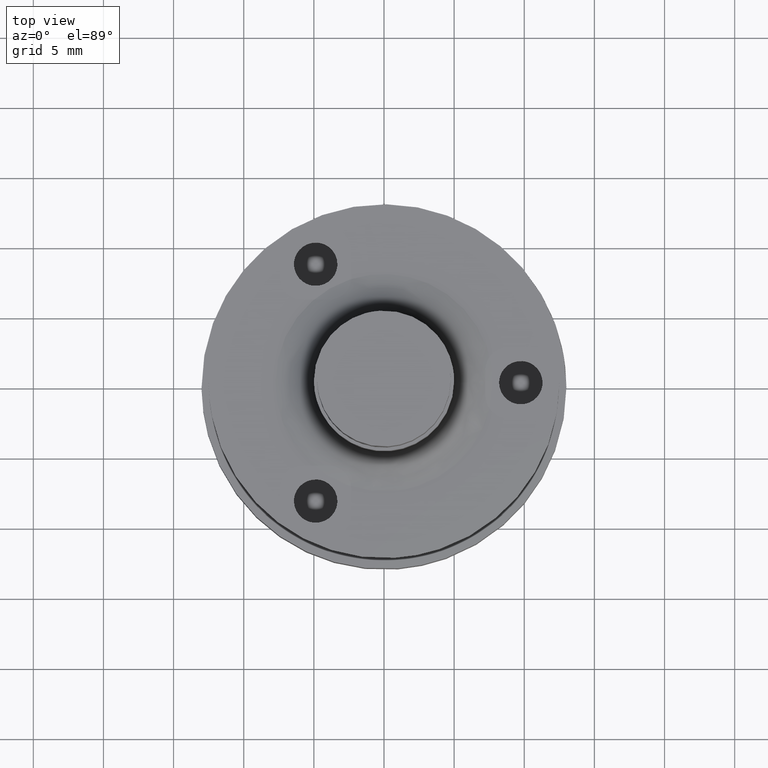
[diagram: clean part render]
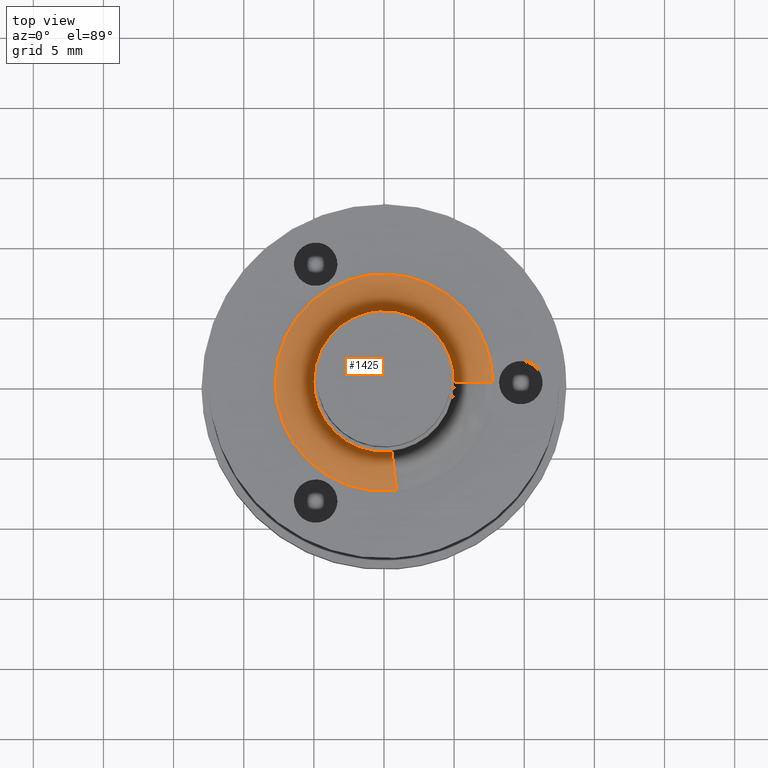
[diagram: same view with one face highlighted and labeled with its STEP entity id]
A machine part, top view. The second image highlights one B-rep face of the part: STEP entity #1425.
In plain terms, the highlighted face is a freeform B-spline surface patch.
Its self-contained STEP definition (entity closure, byte-faithful):
#1003=CARTESIAN_POINT('',(4.680719004476762,1.758086915121115,-9.330715000039447));
#1004=VERTEX_POINT('',#1003);
#1005=CARTESIAN_POINT('',(5.0,2.270239E-016,-9.330715000060895));
#1006=VERTEX_POINT('',#1005);
#1007=CARTESIAN_POINT('',(4.680719004476763,1.758086915121115,-9.330715000039447));
#1008=CARTESIAN_POINT('',(5.0,0.908035298983622,-9.330715000049835));
#1009=CARTESIAN_POINT('',(5.0,2.270239E-016,-9.330715000060895));
#1017=(BOUNDED_CURVE()B_SPLINE_CURVE(2,(#1007,#1008,#1009),.UNSPECIFIED.,.F.,.U.)B_SPLINE_CURVE_WITH_KNOTS((3,3),(0.440284270676763,0.500000000000000),.UNSPECIFIED.)CURVE()GEOMETRIC_REPRESENTATION_ITEM()RATIONAL_B_SPLINE_CURVE((0.893499676740267,0.930038671298897,1.0))REPRESENTATION_ITEM(''));
#1018=EDGE_CURVE('',#1004,#1006,#1017,.T.);
#1074=CARTESIAN_POINT('',(-0.305233489113855,4.990674555311964,-9.330714999999906));
#1075=VERTEX_POINT('',#1074);
#1081=CARTESIAN_POINT('',(-5.0,0.0,-9.330715000000000));
#1082=VERTEX_POINT('',#1081);
#1083=CARTESIAN_POINT('',(-5.0,0.0,-9.330715000000000));
#1084=CARTESIAN_POINT('',(-5.000000000000001,4.703539029489138,-9.330715000000001));
#1085=CARTESIAN_POINT('',(-0.305233489113854,4.990674555311964,-9.330714999999906));
#1093=(BOUNDED_CURVE()B_SPLINE_CURVE(2,(#1083,#1084,#1085),.UNSPECIFIED.,.F.,.U.)B_SPLINE_CURVE_WITH_KNOTS((3,3),(0.0,0.239333280617386),.UNSPECIFIED.)CURVE()GEOMETRIC_REPRESENTATION_ITEM()RATIONAL_B_SPLINE_CURVE((1.0,0.719603620283162,0.976072724013277))REPRESENTATION_ITEM(''));
#1094=EDGE_CURVE('',#1082,#1075,#1093,.T.);
#1096=CARTESIAN_POINT('',(0.577321146661097,-4.966558193922419,-9.330715000061367));
#1097=VERTEX_POINT('',#1096);
#1098=CARTESIAN_POINT('',(0.577321146661097,-4.966558193922419,-9.330715000061367));
#1099=CARTESIAN_POINT('',(0.289629145515373,-5.0,-9.330714999999998));
#1100=CARTESIAN_POINT('',(0.0,-5.0,-9.330715000000000));
#1101=CARTESIAN_POINT('',(-5.000000000000001,-5.000000000000001,-9.330715000000000));
#1102=CARTESIAN_POINT('',(-5.0,0.0,-9.330715000000000));
#1110=(BOUNDED_CURVE()B_SPLINE_CURVE(2,(#1098,#1099,#1100,#1101,#1102),.UNSPECIFIED.,.F.,.U.)B_SPLINE_CURVE_WITH_KNOTS((3,2,3),(0.729999999998248,0.750000000000000,1.0),.UNSPECIFIED.)CURVE()GEOMETRIC_REPRESENTATION_ITEM()RATIONAL_B_SPLINE_CURVE((0.956886118187210,0.976568542492871,1.0,0.707106781186548,1.0))REPRESENTATION_ITEM(''));
#1111=EDGE_CURVE('',#1097,#1082,#1110,.T.);
#1147=CARTESIAN_POINT('',(-0.305233489113854,4.990674555311964,-9.330714999999906));
#1148=CARTESIAN_POINT('',(-0.152759199303427,5.0,-9.330715000000000));
#1149=CARTESIAN_POINT('',(0.0,5.0,-9.330715000000000));
#1150=CARTESIAN_POINT('',(3.463050315322535,5.0,-9.330714999999998));
#1151=CARTESIAN_POINT('',(4.680719004476763,1.758086915121115,-9.330715000039447));
#1159=(BOUNDED_CURVE()B_SPLINE_CURVE(2,(#1147,#1148,#1149,#1150,#1151),.UNSPECIFIED.,.F.,.U.)B_SPLINE_CURVE_WITH_KNOTS((3,2,3),(0.239333280617386,0.250000000000000,0.440284270676763),.UNSPECIFIED.)CURVE()GEOMETRIC_REPRESENTATION_ITEM()RATIONAL_B_SPLINE_CURVE((0.976072724013277,0.987503160903386,1.0,0.777068109887651,0.893499676740267))REPRESENTATION_ITEM(''));
#1160=EDGE_CURVE('',#1075,#1004,#1159,.T.);
#1322=CARTESIAN_POINT('',(0.916867559449045,-7.887603967971469,-12.074093953517918));
#1323=CARTESIAN_POINT('',(0.459972006193321,-7.940714229660283,-12.074093953517917));
#1324=CARTESIAN_POINT('',(9.724249E-016,-7.940714229660282,-12.074093953517920));
#1325=CARTESIAN_POINT('',(-7.940714229660282,-7.940714229660283,-12.074093953517920));
#1326=CARTESIAN_POINT('',(-7.940714229660282,-1.458637E-015,-12.074093953517920));
#1327=CARTESIAN_POINT('',(-7.940714229660284,7.940714229660282,-12.074093953517920));
#1328=CARTESIAN_POINT('',(-1.944850E-015,7.940714229660282,-12.074093953517920));
#1329=CARTESIAN_POINT('',(7.940714229660282,7.940714229660284,-12.074093953517920));
#1330=CARTESIAN_POINT('',(7.940714229660282,2.431062E-015,-12.074093953517920));
#1331=CARTESIAN_POINT('',(0.552636337943279,-4.754205257982929,-12.293388295167608));
#1332=CARTESIAN_POINT('',(0.277245325608259,-4.786217144786464,-12.293388295167606));
#1333=CARTESIAN_POINT('',(5.861232E-016,-4.786217144786465,-12.293388295167606));
#1334=CARTESIAN_POINT('',(-4.786217144786462,-4.786217144786464,-12.293388295167610));
#1335=CARTESIAN_POINT('',(-4.786217144786465,-8.791848E-016,-12.293388295167606));
#1336=CARTESIAN_POINT('',(-4.786217144786464,4.786217144786462,-12.293388295167610));
#1337=CARTESIAN_POINT('',(-1.172246E-015,4.786217144786465,-12.293388295167606));
#1338=CARTESIAN_POINT('',(4.786217144786462,4.786217144786464,-12.293388295167610));
#1339=CARTESIAN_POINT('',(4.786217144786465,1.465308E-015,-12.293388295167606));
#1340=CARTESIAN_POINT('',(0.578093347591803,-4.973206146657684,-9.138973544666909));
#1341=CARTESIAN_POINT('',(0.290016539595534,-5.006692650411414,-9.138973544666907));
#1342=CARTESIAN_POINT('',(6.131228E-016,-5.006692650411413,-9.138973544666905));
#1343=CARTESIAN_POINT('',(-5.006692650411412,-5.006692650411412,-9.138973544666907));
#1344=CARTESIAN_POINT('',(-5.006692650411413,-9.196841E-016,-9.138973544666905));
#1345=CARTESIAN_POINT('',(-5.006692650411414,5.006692650411412,-9.138973544666907));
#1346=CARTESIAN_POINT('',(-1.226246E-015,5.006692650411413,-9.138973544666905));
#1347=CARTESIAN_POINT('',(5.006692650411412,5.006692650411414,-9.138973544666907));
#1348=CARTESIAN_POINT('',(5.006692650411413,1.532807E-015,-9.138973544666905));
#1356=(BOUNDED_SURFACE()B_SPLINE_SURFACE(2,2,((#1322,#1331,#1340),(#1323,#1332,#1341),(#1324,#1333,#1342),(#1325,#1334,#1343),(#1326,#1335,#1344),(#1327,#1336,#1345),(#1328,#1337,#1346),(#1329,#1338,#1347),(#1330,#1339,#1348)),.UNSPECIFIED.,.F.,.F.,.U.)B_SPLINE_SURFACE_WITH_KNOTS((3,2,2,2,3),(3,3),(0.0,1.052527485463993,14.209133600881250,27.365739716298499,40.522345831715747),(0.0,5.011518513726593),.UNSPECIFIED.)GEOMETRIC_REPRESENTATION_ITEM()RATIONAL_B_SPLINE_SURFACE(((0.870831666171810,0.569876382319433,0.866007966361445),(0.888744000900440,0.581598299321969,0.883821081310880),(0.910068205037123,0.595552959885330,0.905027166684263),(0.643515399124019,0.421119536490637,0.639950846720490),(0.910068205037123,0.595552959885330,0.905027166684263),(0.643515399124019,0.421119536490637,0.639950846720490),(0.910068205037123,0.595552959885330,0.905027166684263),(0.643515399124019,0.421119536490637,0.639950846720490),(0.910068205037123,0.595552959885330,0.905027166684263)))REPRESENTATION_ITEM('')SURFACE());
#1357=ORIENTED_EDGE('',*,*,#1111,.T.);
#1358=ORIENTED_EDGE('',*,*,#1094,.T.);
#1359=ORIENTED_EDGE('',*,*,#1160,.T.);
#1360=ORIENTED_EDGE('',*,*,#1018,.T.);
#1361=CARTESIAN_POINT('',(7.749999999959968,2.046831E-016,-12.080715000000000));
#1362=VERTEX_POINT('',#1361);
#1363=CARTESIAN_POINT('',(7.749999999959969,2.046831E-016,-12.080715000000003));
#1364=CARTESIAN_POINT('',(5.000000000121786,5.304852E-016,-12.080714999839870));
#1365=CARTESIAN_POINT('',(5.000000000000001,2.270239E-016,-9.330715000060897));
#1373=(BOUNDED_CURVE()B_SPLINE_CURVE(2,(#1363,#1364,#1365),.UNSPECIFIED.,.F.,.U.)B_SPLINE_CURVE_WITH_KNOTS((3,3),(-1.726807299454113,-0.285995334090020),.UNSPECIFIED.)CURVE()GEOMETRIC_REPRESENTATION_ITEM()RATIONAL_B_SPLINE_CURVE((0.882788776197553,0.622603437757962,0.878205639038500))REPRESENTATION_ITEM(''));
#1374=EDGE_CURVE('',#1362,#1006,#1373,.T.);
#1375=ORIENTED_EDGE('',*,*,#1374,.F.);
#1376=CARTESIAN_POINT('',(-7.750000000000000,0.0,-12.080715000000000));
#1377=VERTEX_POINT('',#1376);
#1378=CARTESIAN_POINT('',(-7.750000000000000,0.0,-12.080715000000000));
#1379=CARTESIAN_POINT('',(-7.750000000000001,7.750000000000001,-12.080715000000001));
#1380=CARTESIAN_POINT('',(0.0,7.750000000000000,-12.080715000000000));
#1381=CARTESIAN_POINT('',(7.750000000000001,7.750000000000001,-12.080715000000001));
#1382=CARTESIAN_POINT('',(7.749999999959968,2.046831E-016,-12.080715000000000));
#1390=(BOUNDED_CURVE()B_SPLINE_CURVE(2,(#1378,#1379,#1380,#1381,#1382),.UNSPECIFIED.,.F.,.U.)B_SPLINE_CURVE_WITH_KNOTS((3,2,3),(0.0,0.250000000000000,0.500000000000000),.UNSPECIFIED.)CURVE()GEOMETRIC_REPRESENTATION_ITEM()RATIONAL_B_SPLINE_CURVE((1.0,0.707106781186548,1.0,0.707106781186548,1.0))REPRESENTATION_ITEM(''));
#1391=EDGE_CURVE('',#1377,#1362,#1390,.T.);
#1392=ORIENTED_EDGE('',*,*,#1391,.F.);
#1393=CARTESIAN_POINT('',(0.894847777338014,-7.698165200433881,-12.080715000000000));
#1394=VERTEX_POINT('',#1393);
#1395=CARTESIAN_POINT('',(0.894847777338014,-7.698165200433881,-12.080715000000003));
#1396=CARTESIAN_POINT('',(0.448925175578996,-7.749999999999999,-12.080715000000005));
#1397=CARTESIAN_POINT('',(0.0,-7.750000000000000,-12.080715000000000));
#1398=CARTESIAN_POINT('',(-7.750000000000001,-7.750000000000001,-12.080715000000001));
#1399=CARTESIAN_POINT('',(-7.750000000000000,0.0,-12.080715000000000));
#1407=(BOUNDED_CURVE()B_SPLINE_CURVE(2,(#1395,#1396,#1397,#1398,#1399),.UNSPECIFIED.,.F.,.U.)B_SPLINE_CURVE_WITH_KNOTS((3,2,3),(0.729999999996935,0.750000000000000,1.0),.UNSPECIFIED.)CURVE()GEOMETRIC_REPRESENTATION_ITEM()RATIONAL_B_SPLINE_CURVE((0.956886118184627,0.976568542491333,1.0,0.707106781186548,1.0))REPRESENTATION_ITEM(''));
#1408=EDGE_CURVE('',#1394,#1377,#1407,.T.);
#1409=ORIENTED_EDGE('',*,*,#1408,.F.);
#1410=CARTESIAN_POINT('',(0.894847777338014,-7.698165200433881,-12.080715000000005));
#1411=CARTESIAN_POINT('',(0.577321146649541,-4.966558194047321,-12.080714999713289));
#1412=CARTESIAN_POINT('',(0.577321146661097,-4.966558193922419,-9.330715000061367));
#1420=(BOUNDED_CURVE()B_SPLINE_CURVE(2,(#1410,#1411,#1412),.UNSPECIFIED.,.F.,.U.)B_SPLINE_CURVE_WITH_KNOTS((3,3),(-1.726807299407096,-0.285995334090370),.UNSPECIFIED.)CURVE()GEOMETRIC_REPRESENTATION_ITEM()RATIONAL_B_SPLINE_CURVE((0.844728325221710,0.595760586736418,0.840342784912580))REPRESENTATION_ITEM(''));
#1421=EDGE_CURVE('',#1394,#1097,#1420,.T.);
#1422=ORIENTED_EDGE('',*,*,#1421,.T.);
#1423=EDGE_LOOP('',(#1357,#1358,#1359,#1360,#1375,#1392,#1409,#1422));
#1424=FACE_OUTER_BOUND('',#1423,.T.);
#1425=ADVANCED_FACE('',(#1424),#1356,.F.);